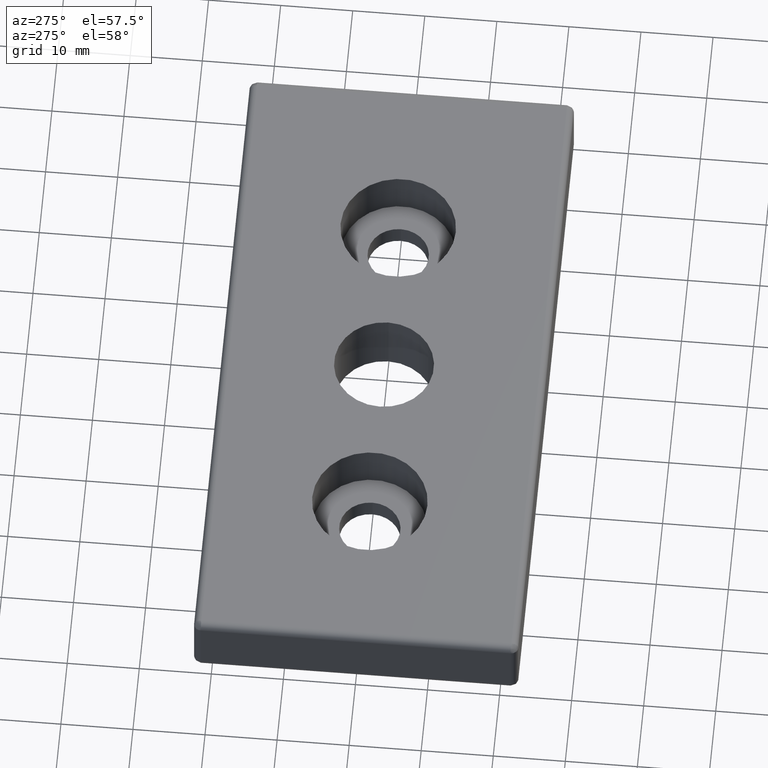
[diagram: clean part render]
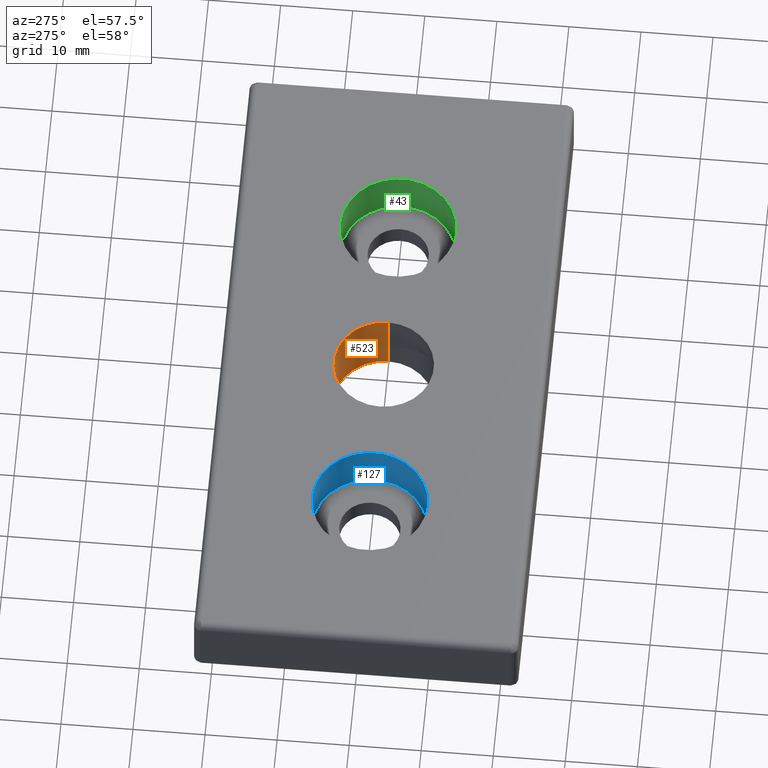
[diagram: same view with three faces highlighted in distinct colors, each labeled with its STEP entity id]
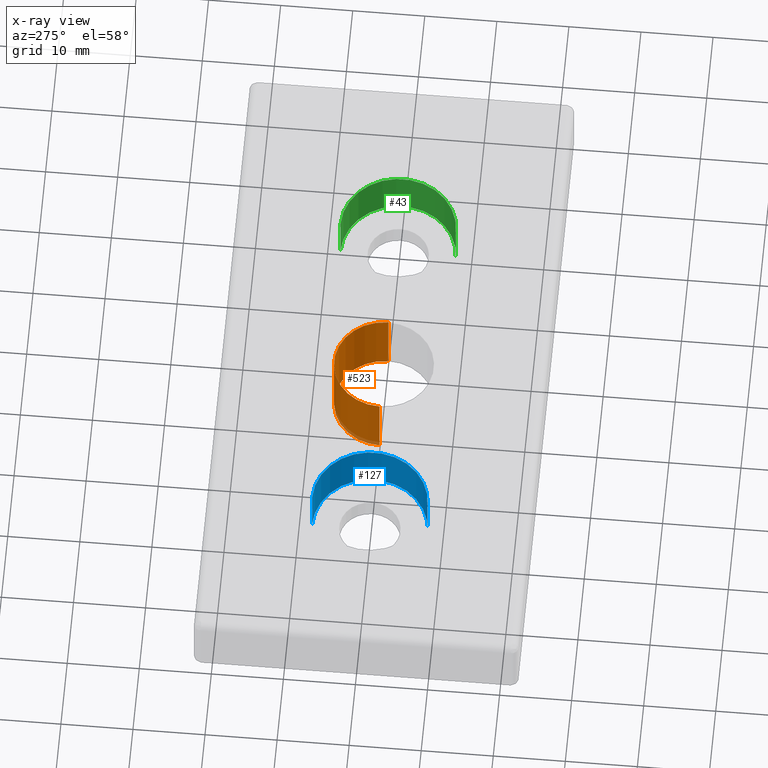
[diagram: x-ray of the same camera — body ghosted, the three highlighted faces saturated]
A machine part, auxiliary view with three faces highlighted in distinct colors.
The next image is the same camera in x-ray (body ghosted, the three faces saturated) — at least one of them is partly hidden behind the body in this view.
Their STEP definitions:

[orange] entity #523 — the highlighted cylindrical surface (partial cylindrical patch) has radius 6.9175 mm, axis along (0, 0, 1).
#175=CARTESIAN_POINT('',(-37.789606781186521,0.0,-0.292893218813443));
#176=VERTEX_POINT('',#175);
#177=CARTESIAN_POINT('',(-51.624606781186515,0.0,-0.292893218813443));
#178=VERTEX_POINT('',#177);
#186=CARTESIAN_POINT('',(-51.624606781186515,0.0,9.707106781186552));
#187=VERTEX_POINT('',#186);
#188=CARTESIAN_POINT('',(-51.624606781186515,0.0,-0.292893218813449));
#189=DIRECTION('',(0.0,0.0,1.0));
#190=VECTOR('',#189,10.0);
#191=LINE('',#188,#190);
#192=EDGE_CURVE('',#178,#187,#191,.T.);
#194=CARTESIAN_POINT('',(-37.789606781186521,0.0,9.707106781186552));
#195=VERTEX_POINT('',#194);
#203=CARTESIAN_POINT('',(-37.789606781186521,0.0,-0.292893218813449));
#204=DIRECTION('',(0.0,0.0,1.0));
#205=VECTOR('',#204,10.0);
#206=LINE('',#203,#205);
#207=EDGE_CURVE('',#176,#195,#206,.T.);
#432=CARTESIAN_POINT('',(-44.707106781186518,0.0,-0.292893218813443));
#433=DIRECTION('',(0.0,0.0,-1.0));
#434=DIRECTION('',(-1.0,0.0,0.0));
#435=AXIS2_PLACEMENT_3D('',#432,#433,#434);
#436=CIRCLE('',#435,6.917500000000000);
#437=EDGE_CURVE('',#178,#176,#436,.T.);
#501=CARTESIAN_POINT('',(-44.707106781186518,0.0,9.707106781186552));
#502=DIRECTION('',(0.0,0.0,1.0));
#503=DIRECTION('',(0.0,1.0,0.0));
#504=AXIS2_PLACEMENT_3D('',#501,#502,#503);
#505=CIRCLE('',#504,6.917500000000000);
#506=EDGE_CURVE('',#195,#187,#505,.T.);
#512=CARTESIAN_POINT('',(-44.707106781186518,0.0,-0.292893228813440));
#513=DIRECTION('',(0.0,0.0,1.0));
#514=DIRECTION('',(0.0,-1.0,0.0));
#515=AXIS2_PLACEMENT_3D('',#512,#513,#514);
#516=CYLINDRICAL_SURFACE('',#515,6.917500000000000);
#517=ORIENTED_EDGE('',*,*,#192,.F.);
#518=ORIENTED_EDGE('',*,*,#437,.T.);
#519=ORIENTED_EDGE('',*,*,#207,.T.);
#520=ORIENTED_EDGE('',*,*,#506,.T.);
#521=EDGE_LOOP('',(#517,#518,#519,#520));
#522=FACE_OUTER_BOUND('',#521,.T.);
#523=ADVANCED_FACE('',(#522),#516,.F.);

[blue] entity #127 — the highlighted cylindrical surface (partial cylindrical patch) has radius 8 mm, axis along (0, 0, -1).
#86=CARTESIAN_POINT('',(-67.207106781186496,0.0,9.707106791186551));
#87=DIRECTION('',(0.0,0.0,-1.0));
#88=DIRECTION('',(-1.0,0.0,0.0));
#89=AXIS2_PLACEMENT_3D('',#86,#87,#88);
#90=CYLINDRICAL_SURFACE('',#89,8.0);
#91=CARTESIAN_POINT('',(-67.207106781186496,7.999999999999993,9.707106781186552));
#92=VERTEX_POINT('',#91);
#93=CARTESIAN_POINT('',(-67.207106781186496,-8.0,9.707106781186552));
#94=VERTEX_POINT('',#93);
#95=CARTESIAN_POINT('',(-67.207106781186496,0.0,9.707106781186552));
#96=DIRECTION('',(0.0,0.0,-1.0));
#97=DIRECTION('',(0.0,-1.0,0.0));
#98=AXIS2_PLACEMENT_3D('',#95,#96,#97);
#99=CIRCLE('',#98,8.0);
#100=EDGE_CURVE('',#92,#94,#99,.T.);
#101=ORIENTED_EDGE('',*,*,#100,.F.);
#102=CARTESIAN_POINT('',(-67.207106781186496,7.999999999999993,2.707106781186552));
#103=VERTEX_POINT('',#102);
#104=CARTESIAN_POINT('',(-67.207106781186496,7.999999999999993,9.707106781186552));
#105=DIRECTION('',(0.0,0.0,-1.0));
#106=VECTOR('',#105,7.0);
#107=LINE('',#104,#106);
#108=EDGE_CURVE('',#92,#103,#107,.T.);
#109=ORIENTED_EDGE('',*,*,#108,.T.);
#110=CARTESIAN_POINT('',(-67.207106781186496,-8.0,2.707106781186552));
#111=VERTEX_POINT('',#110);
#112=CARTESIAN_POINT('',(-67.207106781186496,0.0,2.707106781186552));
#113=DIRECTION('',(0.0,0.0,1.0));
#114=DIRECTION('',(0.0,-1.0,0.0));
#115=AXIS2_PLACEMENT_3D('',#112,#113,#114);
#116=CIRCLE('',#115,8.0);
#117=EDGE_CURVE('',#111,#103,#116,.T.);
#118=ORIENTED_EDGE('',*,*,#117,.F.);
#119=CARTESIAN_POINT('',(-67.207106781186496,-8.0,9.707106781186552));
#120=DIRECTION('',(0.0,0.0,-1.0));
#121=VECTOR('',#120,7.0);
#122=LINE('',#119,#121);
#123=EDGE_CURVE('',#94,#111,#122,.T.);
#124=ORIENTED_EDGE('',*,*,#123,.F.);
#125=EDGE_LOOP('',(#101,#109,#118,#124));
#126=FACE_OUTER_BOUND('',#125,.T.);
#127=ADVANCED_FACE('',(#126),#90,.F.);

[green] entity #43 — the highlighted cylindrical surface (partial cylindrical patch) has radius 8 mm, axis along (0, 0, -1).
#2=CARTESIAN_POINT('',(-22.207106781186489,0.0,9.707106791186551));
#3=DIRECTION('',(0.0,0.0,-1.0));
#4=DIRECTION('',(-1.0,0.0,0.0));
#5=AXIS2_PLACEMENT_3D('',#2,#3,#4);
#6=CYLINDRICAL_SURFACE('',#5,8.0);
#7=CARTESIAN_POINT('',(-22.207106781186493,7.999999999999993,9.707106781186552));
#8=VERTEX_POINT('',#7);
#9=CARTESIAN_POINT('',(-22.207106781186493,-8.0,9.707106781186552));
#10=VERTEX_POINT('',#9);
#11=CARTESIAN_POINT('',(-22.207106781186493,0.0,9.707106781186552));
#12=DIRECTION('',(0.0,0.0,-1.0));
#13=DIRECTION('',(0.0,-1.0,0.0));
#14=AXIS2_PLACEMENT_3D('',#11,#12,#13);
#15=CIRCLE('',#14,8.0);
#16=EDGE_CURVE('',#8,#10,#15,.T.);
#17=ORIENTED_EDGE('',*,*,#16,.F.);
#18=CARTESIAN_POINT('',(-22.207106781186493,7.999999999999993,2.707106781186552));
#19=VERTEX_POINT('',#18);
#20=CARTESIAN_POINT('',(-22.207106781186493,7.999999999999993,9.707106781186552));
#21=DIRECTION('',(0.0,0.0,-1.0));
#22=VECTOR('',#21,7.0);
#23=LINE('',#20,#22);
#24=EDGE_CURVE('',#8,#19,#23,.T.);
#25=ORIENTED_EDGE('',*,*,#24,.T.);
#26=CARTESIAN_POINT('',(-22.207106781186493,-8.0,2.707106781186552));
#27=VERTEX_POINT('',#26);
#28=CARTESIAN_POINT('',(-22.207106781186493,0.0,2.707106781186552));
#29=DIRECTION('',(0.0,0.0,1.0));
#30=DIRECTION('',(0.0,-1.0,0.0));
#31=AXIS2_PLACEMENT_3D('',#28,#29,#30);
#32=CIRCLE('',#31,8.0);
#33=EDGE_CURVE('',#27,#19,#32,.T.);
#34=ORIENTED_EDGE('',*,*,#33,.F.);
#35=CARTESIAN_POINT('',(-22.207106781186493,-8.0,9.707106781186552));
#36=DIRECTION('',(0.0,0.0,-1.0));
#37=VECTOR('',#36,7.0);
#38=LINE('',#35,#37);
#39=EDGE_CURVE('',#10,#27,#38,.T.);
#40=ORIENTED_EDGE('',*,*,#39,.F.);
#41=EDGE_LOOP('',(#17,#25,#34,#40));
#42=FACE_OUTER_BOUND('',#41,.T.);
#43=ADVANCED_FACE('',(#42),#6,.F.);